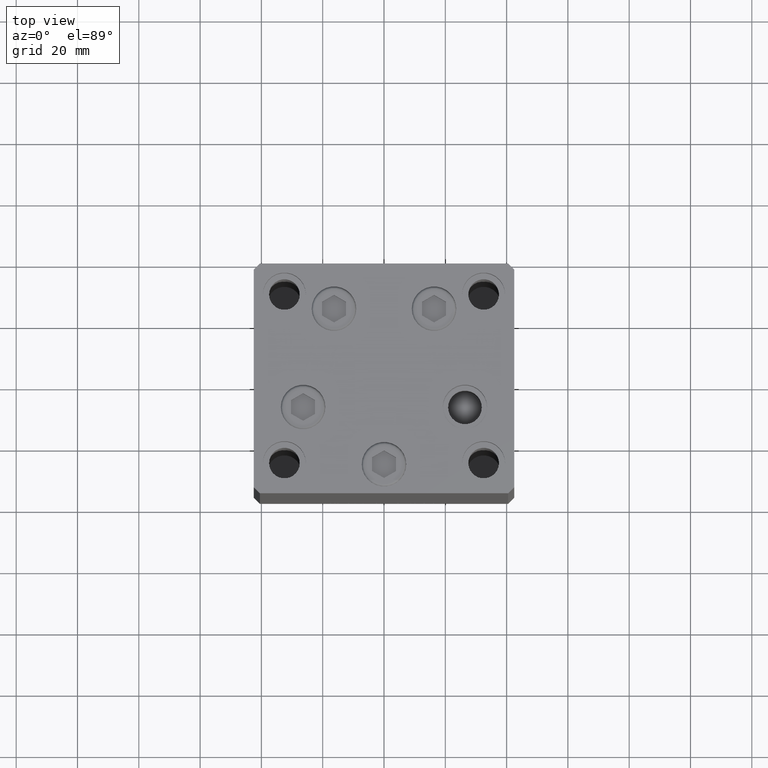
[diagram: clean part render]
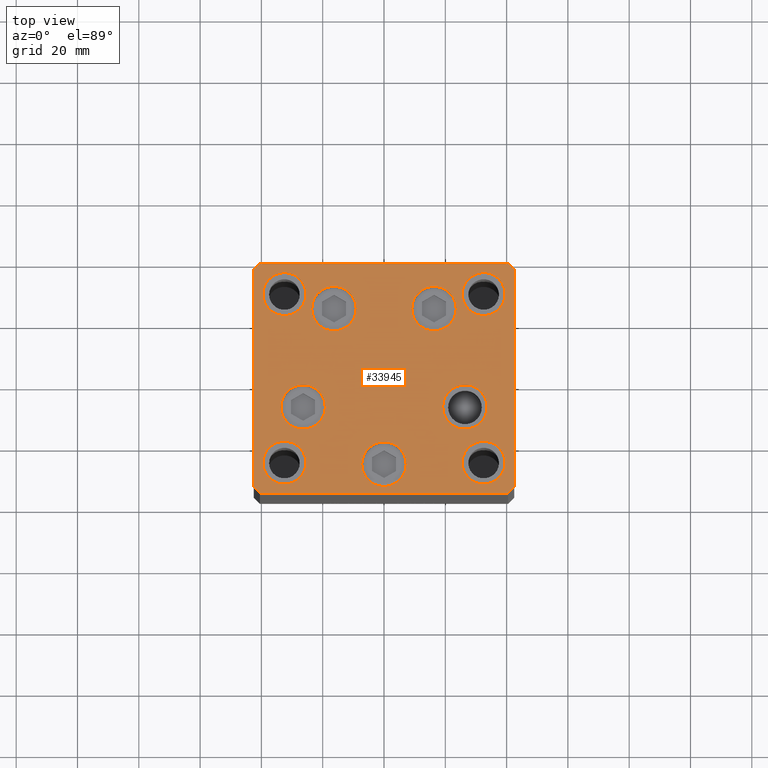
[diagram: same view with one face highlighted and labeled with its STEP entity id]
A machine part, top view. The second image highlights one B-rep face of the part: STEP entity #33945.
In plain terms, the highlighted planar face has unit normal (0, 0, 1).
Its self-contained STEP definition (entity closure, byte-faithful):
#11 = AXIS2_PLACEMENT_3D ( 'NONE', #10220, #25315, #6496 ) ;
#74 = EDGE_CURVE ( 'NONE', #40854, #23417, #31121, .T. ) ;
#98 = AXIS2_PLACEMENT_3D ( 'NONE', #12049, #9304, #39521 ) ;
#239 = VECTOR ( 'NONE', #29629, 1000.000000000000000 ) ;
#566 = CIRCLE ( 'NONE', #40842, 6.999999999999999112 ) ;
#652 = FACE_BOUND ( 'NONE', #18406, .T. ) ;
#993 = CARTESIAN_POINT ( 'NONE',  ( -7.249999999999997335, -28.00000000000000000, 0.000000000000000000 ) ) ;
#1255 = VERTEX_POINT ( 'NONE', #32862 ) ;
#2105 = CARTESIAN_POINT ( 'NONE',  ( 16.32291334290542295, 22.75000000000000000, 0.000000000000000000 ) ) ;
#2407 = LINE ( 'NONE', #36577, #40358 ) ;
#2467 = ORIENTED_EDGE ( 'NONE', *, *, #15755, .T. ) ;
#2559 = EDGE_CURVE ( 'NONE', #23417, #40854, #24839, .T. ) ;
#2667 = CARTESIAN_POINT ( 'NONE',  ( -40.50000000000000711, 37.49999999999997868, 0.000000000000000000 ) ) ;
#2754 = ORIENTED_EDGE ( 'NONE', *, *, #35078, .F. ) ;
#2875 = VECTOR ( 'NONE', #11270, 1000.000000000000000 ) ;
#2933 = DIRECTION ( 'NONE',  ( 0.000000000000000000, 0.000000000000000000, 1.000000000000000000 ) ) ;
#3029 = CIRCLE ( 'NONE', #10918, 7.250000000000000000 ) ;
#3052 = EDGE_CURVE ( 'NONE', #14926, #40817, #25319, .T. ) ;
#3372 = DIRECTION ( 'NONE',  ( 0.000000000000000000, -0.000000000000000000, -1.000000000000000000 ) ) ;
#3924 = CARTESIAN_POINT ( 'NONE',  ( -32.50000000000000000, 27.50000000000000355, 0.000000000000000000 ) ) ;
#4516 = DIRECTION ( 'NONE',  ( 1.000000000000000000, 0.000000000000000000, 0.000000000000000000 ) ) ;
#5317 = LINE ( 'NONE', #9042, #39408 ) ;
#5607 = CIRCLE ( 'NONE', #38054, 7.249999999999999112 ) ;
#6161 = DIRECTION ( 'NONE',  ( 0.7071067811865474617, 0.7071067811865474617, 0.000000000000000000 ) ) ;
#6496 = DIRECTION ( 'NONE',  ( 1.000000000000000000, 0.000000000000000000, 0.000000000000000000 ) ) ;
#7180 = DIRECTION ( 'NONE',  ( 0.000000000000000000, 0.000000000000000000, 1.000000000000000000 ) ) ;
#7232 = CARTESIAN_POINT ( 'NONE',  ( -32.50000000000000000, -27.49999999999999645, 0.000000000000000000 ) ) ;
#7546 = CARTESIAN_POINT ( 'NONE',  ( -40.50000000000000711, 37.49999999999997868, 0.000000000000000000 ) ) ;
#7565 = ORIENTED_EDGE ( 'NONE', *, *, #42163, .F. ) ;
#7689 = AXIS2_PLACEMENT_3D ( 'NONE', #47806, #46438, #10184 ) ;
#7801 = CARTESIAN_POINT ( 'NONE',  ( 33.64865316429776954, -9.333333333333328596, 0.000000000000000000 ) ) ;
#7820 = CARTESIAN_POINT ( 'NONE',  ( 0.000000000000000000, 0.000000000000000000, 0.000000000000000000 ) ) ;
#7830 = LINE ( 'NONE', #34832, #32278 ) ;
#7906 = VECTOR ( 'NONE', #12619, 1000.000000000000000 ) ;
#8154 = CARTESIAN_POINT ( 'NONE',  ( 42.50000000000000711, -35.50000000000000000, 0.000000000000000000 ) ) ;
#8250 = AXIS2_PLACEMENT_3D ( 'NONE', #41670, #11451, #45615 ) ;
#8482 = DIRECTION ( 'NONE',  ( 0.000000000000000000, 0.000000000000000000, 1.000000000000000000 ) ) ;
#9034 = VERTEX_POINT ( 'NONE', #34551 ) ;
#9042 = CARTESIAN_POINT ( 'NONE',  ( -40.49999999999999289, -37.50000000000002132, 0.000000000000000000 ) ) ;
#9304 = DIRECTION ( 'NONE',  ( 0.000000000000000000, -0.000000000000000000, -1.000000000000000000 ) ) ;
#9353 = AXIS2_PLACEMENT_3D ( 'NONE', #47875, #14207, #40707 ) ;
#9758 = AXIS2_PLACEMENT_3D ( 'NONE', #40544, #26423, #33367 ) ;
#10184 = DIRECTION ( 'NONE',  ( 1.000000000000000000, 0.000000000000000000, 0.000000000000000000 ) ) ;
#10220 = CARTESIAN_POINT ( 'NONE',  ( 3.429011037612589276E-15, -28.00000000000000000, 0.000000000000000000 ) ) ;
#10418 = VERTEX_POINT ( 'NONE', #35179 ) ;
#10918 = AXIS2_PLACEMENT_3D ( 'NONE', #13807, #21478, #36113 ) ;
#10930 = VERTEX_POINT ( 'NONE', #40572 ) ;
#11152 = AXIS2_PLACEMENT_3D ( 'NONE', #30448, #7180, #21781 ) ;
#11229 = EDGE_LOOP ( 'NONE', ( #32213, #28546 ) ) ;
#11270 = DIRECTION ( 'NONE',  ( -0.7071067811865463515, -0.7071067811865487940, 0.000000000000000000 ) ) ;
#11290 = FACE_BOUND ( 'NONE', #32036, .T. ) ;
#11451 = DIRECTION ( 'NONE',  ( 0.000000000000000000, -0.000000000000000000, -1.000000000000000000 ) ) ;
#11687 = DIRECTION ( 'NONE',  ( 1.000000000000000000, 0.000000000000000000, 0.000000000000000000 ) ) ;
#11759 = ORIENTED_EDGE ( 'NONE', *, *, #37136, .T. ) ;
#11779 = FACE_OUTER_BOUND ( 'NONE', #15965, .T. ) ;
#12027 = PLANE ( 'NONE',  #38687 ) ;
#12049 = CARTESIAN_POINT ( 'NONE',  ( -26.39865316429776954, -9.333333333333337478, 0.000000000000000000 ) ) ;
#12228 = ORIENTED_EDGE ( 'NONE', *, *, #16261, .T. ) ;
#12355 = CARTESIAN_POINT ( 'NONE',  ( 25.50000000000000355, -27.49999999999999645, 0.000000000000000000 ) ) ;
#12619 = DIRECTION ( 'NONE',  ( 9.773090005503140331E-17, -1.000000000000000000, 0.000000000000000000 ) ) ;
#13107 = VERTEX_POINT ( 'NONE', #19465 ) ;
#13390 = CIRCLE ( 'NONE', #21259, 7.249999999999999112 ) ;
#13551 = DIRECTION ( 'NONE',  ( 0.7071067811865463515, -0.7071067811865487940, 0.000000000000000000 ) ) ;
#13601 = LINE ( 'NONE', #25971, #37894 ) ;
#13636 = ORIENTED_EDGE ( 'NONE', *, *, #35742, .F. ) ;
#13807 = CARTESIAN_POINT ( 'NONE',  ( 3.429011037612589276E-15, -28.00000000000000000, 0.000000000000000000 ) ) ;
#14207 = DIRECTION ( 'NONE',  ( 0.000000000000000000, 0.000000000000000000, 1.000000000000000000 ) ) ;
#14526 = CARTESIAN_POINT ( 'NONE',  ( 40.49999999999991473, 37.50000000000000711, 0.000000000000000000 ) ) ;
#14727 = LINE ( 'NONE', #7546, #2875 ) ;
#14753 = AXIS2_PLACEMENT_3D ( 'NONE', #15669, #35475, #4516 ) ;
#14761 = CARTESIAN_POINT ( 'NONE',  ( 32.50000000000000000, 27.49999999999999645, 0.000000000000000000 ) ) ;
#14790 = CIRCLE ( 'NONE', #14753, 7.249999999999999112 ) ;
#14926 = VERTEX_POINT ( 'NONE', #8154 ) ;
#14973 = CARTESIAN_POINT ( 'NONE',  ( 9.072913342905424727, 22.75000000000000000, 0.000000000000000000 ) ) ;
#15073 = CARTESIAN_POINT ( 'NONE',  ( 39.50000000000000000, -27.49999999999999645, 0.000000000000000000 ) ) ;
#15077 = VERTEX_POINT ( 'NONE', #44741 ) ;
#15669 = CARTESIAN_POINT ( 'NONE',  ( 26.39865316429776954, -9.333333333333330373, 0.000000000000000000 ) ) ;
#15755 = EDGE_CURVE ( 'NONE', #29576, #38817, #3029, .T. ) ;
#15853 = CIRCLE ( 'NONE', #22166, 6.999999999999999112 ) ;
#15965 = EDGE_LOOP ( 'NONE', ( #39806, #37913, #26698, #40029, #39303, #18324, #40458, #11759 ) ) ;
#15980 = FACE_BOUND ( 'NONE', #26521, .T. ) ;
#16232 = DIRECTION ( 'NONE',  ( -0.7071067811865474617, 0.7071067811865474617, 0.000000000000000000 ) ) ;
#16261 = EDGE_CURVE ( 'NONE', #23545, #20770, #48128, .T. ) ;
#16320 = LINE ( 'NONE', #46539, #7906 ) ;
#16493 = DIRECTION ( 'NONE',  ( 0.000000000000000000, -0.000000000000000000, -1.000000000000000000 ) ) ;
#16525 = ORIENTED_EDGE ( 'NONE', *, *, #31534, .F. ) ;
#16720 = VERTEX_POINT ( 'NONE', #12355 ) ;
#17219 = EDGE_CURVE ( 'NONE', #41322, #40172, #13390, .T. ) ;
#17536 = VERTEX_POINT ( 'NONE', #33488 ) ;
#17955 = CIRCLE ( 'NONE', #7689, 6.999999999999999112 ) ;
#18060 = CIRCLE ( 'NONE', #45768, 7.249999999999999112 ) ;
#18324 = ORIENTED_EDGE ( 'NONE', *, *, #23750, .T. ) ;
#18406 = EDGE_LOOP ( 'NONE', ( #16525, #34699 ) ) ;
#18866 = DIRECTION ( 'NONE',  ( 0.000000000000000000, 0.000000000000000000, 1.000000000000000000 ) ) ;
#18961 = FACE_BOUND ( 'NONE', #32165, .T. ) ;
#19465 = CARTESIAN_POINT ( 'NONE',  ( 40.49999999999991473, 37.50000000000000711, 0.000000000000000000 ) ) ;
#19580 = DIRECTION ( 'NONE',  ( 1.000000000000000000, 0.000000000000000000, 0.000000000000000000 ) ) ;
#19603 = AXIS2_PLACEMENT_3D ( 'NONE', #3924, #2933, #33153 ) ;
#20655 = VERTEX_POINT ( 'NONE', #33311 ) ;
#20770 = VERTEX_POINT ( 'NONE', #14973 ) ;
#20843 = DIRECTION ( 'NONE',  ( 0.000000000000000000, 0.000000000000000000, 1.000000000000000000 ) ) ;
#20878 = EDGE_CURVE ( 'NONE', #38817, #29576, #42714, .T. ) ;
#21052 = CARTESIAN_POINT ( 'NONE',  ( 40.50000000000000000, -37.50000000000000711, 0.000000000000000000 ) ) ;
#21211 = EDGE_CURVE ( 'NONE', #44025, #46691, #2407, .T. ) ;
#21259 = AXIS2_PLACEMENT_3D ( 'NONE', #36039, #16493, #27883 ) ;
#21478 = DIRECTION ( 'NONE',  ( 0.000000000000000000, -0.000000000000000000, -1.000000000000000000 ) ) ;
#21781 = DIRECTION ( 'NONE',  ( 1.000000000000000000, 0.000000000000000000, 0.000000000000000000 ) ) ;
#22166 = AXIS2_PLACEMENT_3D ( 'NONE', #14761, #33352, #48197 ) ;
#22352 = EDGE_CURVE ( 'NONE', #20655, #9034, #5607, .T. ) ;
#22678 = VERTEX_POINT ( 'NONE', #15073 ) ;
#22682 = CARTESIAN_POINT ( 'NONE',  ( -39.50000000000000000, 27.50000000000000355, 0.000000000000000000 ) ) ;
#23417 = VERTEX_POINT ( 'NONE', #42871 ) ;
#23533 = CIRCLE ( 'NONE', #19603, 6.999999999999999112 ) ;
#23545 = VERTEX_POINT ( 'NONE', #37137 ) ;
#23585 = DIRECTION ( 'NONE',  ( 1.000000000000000000, 0.000000000000000000, 0.000000000000000000 ) ) ;
#23750 = EDGE_CURVE ( 'NONE', #13107, #45711, #37325, .T. ) ;
#24110 = VECTOR ( 'NONE', #40438, 1000.000000000000000 ) ;
#24405 = EDGE_CURVE ( 'NONE', #45711, #10418, #14727, .T. ) ;
#24628 = DIRECTION ( 'NONE',  ( 1.000000000000000000, 1.713307136767217096E-16, 0.000000000000000000 ) ) ;
#24668 = CARTESIAN_POINT ( 'NONE',  ( 42.49999999999992895, 35.50000000000000000, 0.000000000000000000 ) ) ;
#24839 = CIRCLE ( 'NONE', #8250, 7.249999999999999112 ) ;
#25315 = DIRECTION ( 'NONE',  ( 0.000000000000000000, -0.000000000000000000, -1.000000000000000000 ) ) ;
#25319 = LINE ( 'NONE', #47852, #24110 ) ;
#25595 = EDGE_CURVE ( 'NONE', #40172, #41322, #14790, .T. ) ;
#25971 = CARTESIAN_POINT ( 'NONE',  ( 40.50000000000000000, -37.50000000000000711, 0.000000000000000000 ) ) ;
#26153 = CARTESIAN_POINT ( 'NONE',  ( 19.14865316429777309, -9.333333333333330373, 0.000000000000000000 ) ) ;
#26396 = FACE_BOUND ( 'NONE', #28311, .T. ) ;
#26423 = DIRECTION ( 'NONE',  ( 0.000000000000000000, -0.000000000000000000, -1.000000000000000000 ) ) ;
#26521 = EDGE_LOOP ( 'NONE', ( #28502, #2467 ) ) ;
#26619 = EDGE_CURVE ( 'NONE', #16720, #22678, #17955, .T. ) ;
#26698 = ORIENTED_EDGE ( 'NONE', *, *, #34686, .T. ) ;
#26773 = CARTESIAN_POINT ( 'NONE',  ( -26.39865316429776954, -9.333333333333337478, 0.000000000000000000 ) ) ;
#26818 = AXIS2_PLACEMENT_3D ( 'NONE', #40166, #20843, #35964 ) ;
#27057 = CARTESIAN_POINT ( 'NONE',  ( -32.50000000000000000, -27.49999999999999645, 0.000000000000000000 ) ) ;
#27626 = DIRECTION ( 'NONE',  ( -0.000000000000000000, 0.000000000000000000, 1.000000000000000000 ) ) ;
#27883 = DIRECTION ( 'NONE',  ( 1.000000000000000000, 0.000000000000000000, 0.000000000000000000 ) ) ;
#28311 = EDGE_LOOP ( 'NONE', ( #38425, #12228 ) ) ;
#28355 = DIRECTION ( 'NONE',  ( 0.000000000000000000, -0.000000000000000000, -1.000000000000000000 ) ) ;
#28376 = AXIS2_PLACEMENT_3D ( 'NONE', #2105, #28355, #43466 ) ;
#28502 = ORIENTED_EDGE ( 'NONE', *, *, #20878, .T. ) ;
#28546 = ORIENTED_EDGE ( 'NONE', *, *, #44072, .T. ) ;
#29284 = EDGE_CURVE ( 'NONE', #17536, #1255, #566, .T. ) ;
#29576 = VERTEX_POINT ( 'NONE', #34684 ) ;
#29629 = DIRECTION ( 'NONE',  ( -1.000000000000000000, -3.426614273534436165E-16, 0.000000000000000000 ) ) ;
#30064 = VERTEX_POINT ( 'NONE', #33265 ) ;
#30238 = DIRECTION ( 'NONE',  ( 0.000000000000000000, -0.000000000000000000, -1.000000000000000000 ) ) ;
#30448 = CARTESIAN_POINT ( 'NONE',  ( 32.50000000000000000, -27.49999999999999645, 0.000000000000000000 ) ) ;
#30716 = EDGE_LOOP ( 'NONE', ( #2754, #7565 ) ) ;
#31089 = DIRECTION ( 'NONE',  ( 1.000000000000000000, 0.000000000000000000, 0.000000000000000000 ) ) ;
#31121 = CIRCLE ( 'NONE', #9758, 7.249999999999999112 ) ;
#31465 = ORIENTED_EDGE ( 'NONE', *, *, #26619, .F. ) ;
#31534 = EDGE_CURVE ( 'NONE', #15077, #42234, #23533, .T. ) ;
#32036 = EDGE_LOOP ( 'NONE', ( #44834, #45201 ) ) ;
#32065 = EDGE_CURVE ( 'NONE', #46691, #48892, #5317, .T. ) ;
#32124 = EDGE_CURVE ( 'NONE', #42234, #15077, #33854, .T. ) ;
#32165 = EDGE_LOOP ( 'NONE', ( #44113, #31465 ) ) ;
#32213 = ORIENTED_EDGE ( 'NONE', *, *, #22352, .T. ) ;
#32262 = EDGE_LOOP ( 'NONE', ( #40389, #13636 ) ) ;
#32278 = VECTOR ( 'NONE', #16232, 1000.000000000000114 ) ;
#32494 = CIRCLE ( 'NONE', #11152, 6.999999999999999112 ) ;
#32812 = EDGE_CURVE ( 'NONE', #40817, #13107, #7830, .T. ) ;
#32862 = CARTESIAN_POINT ( 'NONE',  ( -39.50000000000000000, -27.49999999999999645, 0.000000000000000000 ) ) ;
#33137 = CIRCLE ( 'NONE', #26818, 6.999999999999999112 ) ;
#33153 = DIRECTION ( 'NONE',  ( 1.000000000000000000, 0.000000000000000000, 0.000000000000000000 ) ) ;
#33265 = CARTESIAN_POINT ( 'NONE',  ( 39.50000000000000000, 27.49999999999999645, 0.000000000000000000 ) ) ;
#33311 = CARTESIAN_POINT ( 'NONE',  ( -33.64865316429776954, -9.333333333333337478, 0.000000000000000000 ) ) ;
#33352 = DIRECTION ( 'NONE',  ( 0.000000000000000000, 0.000000000000000000, 1.000000000000000000 ) ) ;
#33367 = DIRECTION ( 'NONE',  ( 1.000000000000000000, 0.000000000000000000, 0.000000000000000000 ) ) ;
#33488 = CARTESIAN_POINT ( 'NONE',  ( -25.50000000000000355, -27.49999999999999645, 0.000000000000000000 ) ) ;
#33854 = CIRCLE ( 'NONE', #9353, 6.999999999999999112 ) ;
#33930 = EDGE_CURVE ( 'NONE', #20770, #23545, #18060, .T. ) ;
#33945 = ADVANCED_FACE ( 'NONE', ( #11290, #26396, #35057, #15980, #45704, #18961, #46198, #652, #42250, #11779 ), #12027, .T. ) ;
#34551 = CARTESIAN_POINT ( 'NONE',  ( -19.14865316429777309, -9.333333333333335702, 0.000000000000000000 ) ) ;
#34684 = CARTESIAN_POINT ( 'NONE',  ( 7.250000000000003553, -28.00000000000000000, 0.000000000000000000 ) ) ;
#34686 = EDGE_CURVE ( 'NONE', #48892, #14926, #13601, .T. ) ;
#34699 = ORIENTED_EDGE ( 'NONE', *, *, #32124, .F. ) ;
#34832 = CARTESIAN_POINT ( 'NONE',  ( 42.49999999999992895, 35.50000000000000000, 0.000000000000000000 ) ) ;
#35057 = FACE_BOUND ( 'NONE', #35583, .T. ) ;
#35078 = EDGE_CURVE ( 'NONE', #30064, #10930, #33137, .T. ) ;
#35179 = CARTESIAN_POINT ( 'NONE',  ( -42.50000000000000711, 35.49999999999997158, 0.000000000000000000 ) ) ;
#35475 = DIRECTION ( 'NONE',  ( 0.000000000000000000, -0.000000000000000000, -1.000000000000000000 ) ) ;
#35583 = EDGE_LOOP ( 'NONE', ( #48564, #44638 ) ) ;
#35742 = EDGE_CURVE ( 'NONE', #1255, #17536, #45836, .T. ) ;
#35964 = DIRECTION ( 'NONE',  ( 1.000000000000000000, 0.000000000000000000, 0.000000000000000000 ) ) ;
#36039 = CARTESIAN_POINT ( 'NONE',  ( 26.39865316429776954, -9.333333333333330373, 0.000000000000000000 ) ) ;
#36113 = DIRECTION ( 'NONE',  ( 1.000000000000000000, 0.000000000000000000, 0.000000000000000000 ) ) ;
#36550 = CARTESIAN_POINT ( 'NONE',  ( -9.072913342905431833, 22.74999999999999645, 0.000000000000000000 ) ) ;
#36577 = CARTESIAN_POINT ( 'NONE',  ( -42.50000000000000000, -35.50000000000000711, 0.000000000000000000 ) ) ;
#37136 = EDGE_CURVE ( 'NONE', #10418, #44025, #16320, .T. ) ;
#37137 = CARTESIAN_POINT ( 'NONE',  ( 23.57291334290542295, 22.75000000000000000, 0.000000000000000000 ) ) ;
#37306 = CARTESIAN_POINT ( 'NONE',  ( 16.32291334290542295, 22.75000000000000000, 0.000000000000000000 ) ) ;
#37325 = LINE ( 'NONE', #14526, #239 ) ;
#37894 = VECTOR ( 'NONE', #6161, 1000.000000000000114 ) ;
#37913 = ORIENTED_EDGE ( 'NONE', *, *, #32065, .T. ) ;
#38054 = AXIS2_PLACEMENT_3D ( 'NONE', #26773, #30238, #19580 ) ;
#38425 = ORIENTED_EDGE ( 'NONE', *, *, #33930, .T. ) ;
#38687 = AXIS2_PLACEMENT_3D ( 'NONE', #7820, #27626, #31089 ) ;
#38817 = VERTEX_POINT ( 'NONE', #993 ) ;
#39303 = ORIENTED_EDGE ( 'NONE', *, *, #32812, .T. ) ;
#39408 = VECTOR ( 'NONE', #24628, 1000.000000000000000 ) ;
#39427 = EDGE_CURVE ( 'NONE', #22678, #16720, #32494, .T. ) ;
#39521 = DIRECTION ( 'NONE',  ( 1.000000000000000000, 0.000000000000000000, 0.000000000000000000 ) ) ;
#39806 = ORIENTED_EDGE ( 'NONE', *, *, #21211, .T. ) ;
#40029 = ORIENTED_EDGE ( 'NONE', *, *, #3052, .T. ) ;
#40166 = CARTESIAN_POINT ( 'NONE',  ( 32.50000000000000000, 27.49999999999999645, 0.000000000000000000 ) ) ;
#40172 = VERTEX_POINT ( 'NONE', #7801 ) ;
#40358 = VECTOR ( 'NONE', #13551, 1000.000000000000000 ) ;
#40380 = CARTESIAN_POINT ( 'NONE',  ( -40.49999999999999289, -37.50000000000002132, 0.000000000000000000 ) ) ;
#40389 = ORIENTED_EDGE ( 'NONE', *, *, #29284, .F. ) ;
#40438 = DIRECTION ( 'NONE',  ( -1.172770800660376741E-15, 1.000000000000000000, 0.000000000000000000 ) ) ;
#40458 = ORIENTED_EDGE ( 'NONE', *, *, #24405, .T. ) ;
#40544 = CARTESIAN_POINT ( 'NONE',  ( -16.32291334290543006, 22.74999999999999645, 0.000000000000000000 ) ) ;
#40572 = CARTESIAN_POINT ( 'NONE',  ( 25.50000000000000355, 27.49999999999999645, 0.000000000000000000 ) ) ;
#40707 = DIRECTION ( 'NONE',  ( 1.000000000000000000, 0.000000000000000000, 0.000000000000000000 ) ) ;
#40817 = VERTEX_POINT ( 'NONE', #24668 ) ;
#40842 = AXIS2_PLACEMENT_3D ( 'NONE', #27057, #8482, #23585 ) ;
#40854 = VERTEX_POINT ( 'NONE', #36550 ) ;
#41322 = VERTEX_POINT ( 'NONE', #26153 ) ;
#41670 = CARTESIAN_POINT ( 'NONE',  ( -16.32291334290543006, 22.74999999999999645, 0.000000000000000000 ) ) ;
#42163 = EDGE_CURVE ( 'NONE', #10930, #30064, #15853, .T. ) ;
#42234 = VERTEX_POINT ( 'NONE', #22682 ) ;
#42250 = FACE_BOUND ( 'NONE', #30716, .T. ) ;
#42714 = CIRCLE ( 'NONE', #11, 7.250000000000000000 ) ;
#42805 = CIRCLE ( 'NONE', #98, 7.249999999999999112 ) ;
#42871 = CARTESIAN_POINT ( 'NONE',  ( -23.57291334290543006, 22.74999999999999645, 0.000000000000000000 ) ) ;
#43466 = DIRECTION ( 'NONE',  ( 1.000000000000000000, 0.000000000000000000, 0.000000000000000000 ) ) ;
#44025 = VERTEX_POINT ( 'NONE', #45238 ) ;
#44072 = EDGE_CURVE ( 'NONE', #9034, #20655, #42805, .T. ) ;
#44113 = ORIENTED_EDGE ( 'NONE', *, *, #39427, .F. ) ;
#44638 = ORIENTED_EDGE ( 'NONE', *, *, #25595, .T. ) ;
#44741 = CARTESIAN_POINT ( 'NONE',  ( -25.50000000000000355, 27.50000000000000355, 0.000000000000000000 ) ) ;
#44834 = ORIENTED_EDGE ( 'NONE', *, *, #2559, .T. ) ;
#45201 = ORIENTED_EDGE ( 'NONE', *, *, #74, .T. ) ;
#45238 = CARTESIAN_POINT ( 'NONE',  ( -42.50000000000000000, -35.50000000000000711, 0.000000000000000000 ) ) ;
#45615 = DIRECTION ( 'NONE',  ( 1.000000000000000000, 0.000000000000000000, 0.000000000000000000 ) ) ;
#45704 = FACE_BOUND ( 'NONE', #11229, .T. ) ;
#45711 = VERTEX_POINT ( 'NONE', #2667 ) ;
#45768 = AXIS2_PLACEMENT_3D ( 'NONE', #37306, #3372, #48925 ) ;
#45836 = CIRCLE ( 'NONE', #48967, 6.999999999999999112 ) ;
#46198 = FACE_BOUND ( 'NONE', #32262, .T. ) ;
#46438 = DIRECTION ( 'NONE',  ( 0.000000000000000000, 0.000000000000000000, 1.000000000000000000 ) ) ;
#46539 = CARTESIAN_POINT ( 'NONE',  ( -42.50000000000000711, 35.49999999999997158, 0.000000000000000000 ) ) ;
#46691 = VERTEX_POINT ( 'NONE', #40380 ) ;
#47806 = CARTESIAN_POINT ( 'NONE',  ( 32.50000000000000000, -27.49999999999999645, 0.000000000000000000 ) ) ;
#47852 = CARTESIAN_POINT ( 'NONE',  ( 42.50000000000000711, -35.50000000000000000, 0.000000000000000000 ) ) ;
#47875 = CARTESIAN_POINT ( 'NONE',  ( -32.50000000000000000, 27.50000000000000355, 0.000000000000000000 ) ) ;
#48128 = CIRCLE ( 'NONE', #28376, 7.249999999999999112 ) ;
#48197 = DIRECTION ( 'NONE',  ( 1.000000000000000000, 0.000000000000000000, 0.000000000000000000 ) ) ;
#48564 = ORIENTED_EDGE ( 'NONE', *, *, #17219, .T. ) ;
#48892 = VERTEX_POINT ( 'NONE', #21052 ) ;
#48925 = DIRECTION ( 'NONE',  ( 1.000000000000000000, 0.000000000000000000, 0.000000000000000000 ) ) ;
#48967 = AXIS2_PLACEMENT_3D ( 'NONE', #7232, #18866, #11687 ) ;